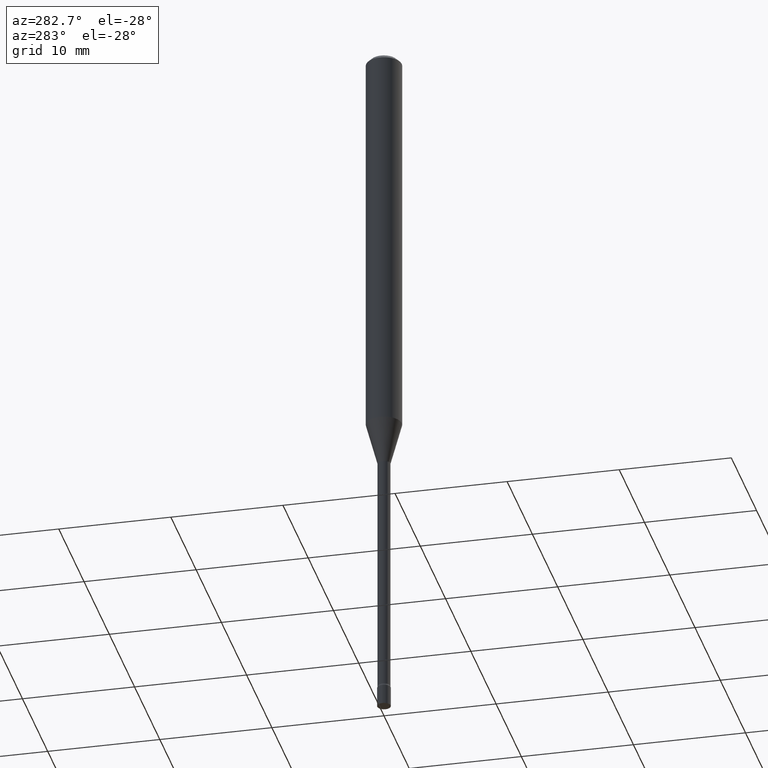
[diagram: clean part render]
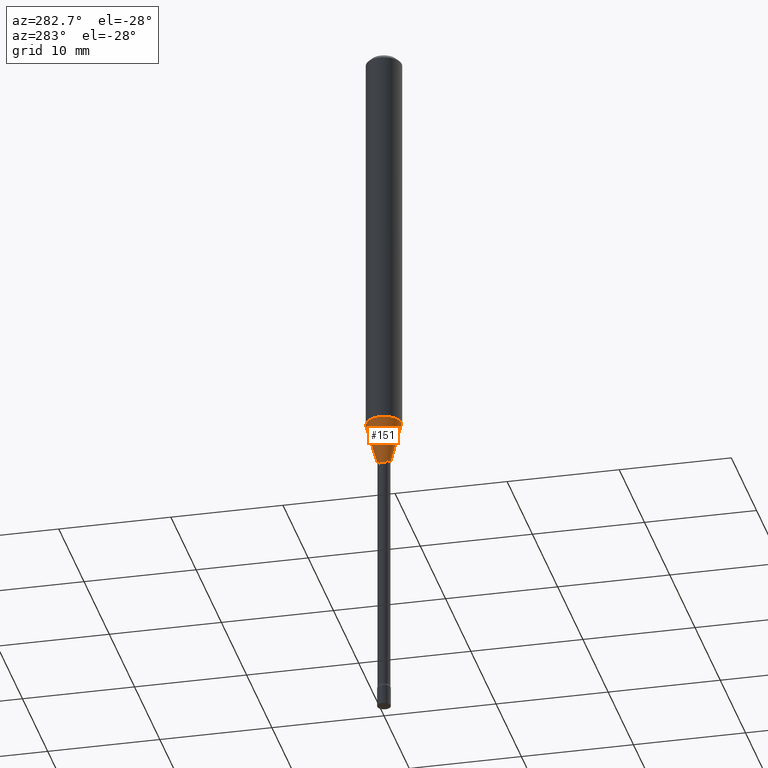
[diagram: same view with one face highlighted and labeled with its STEP entity id]
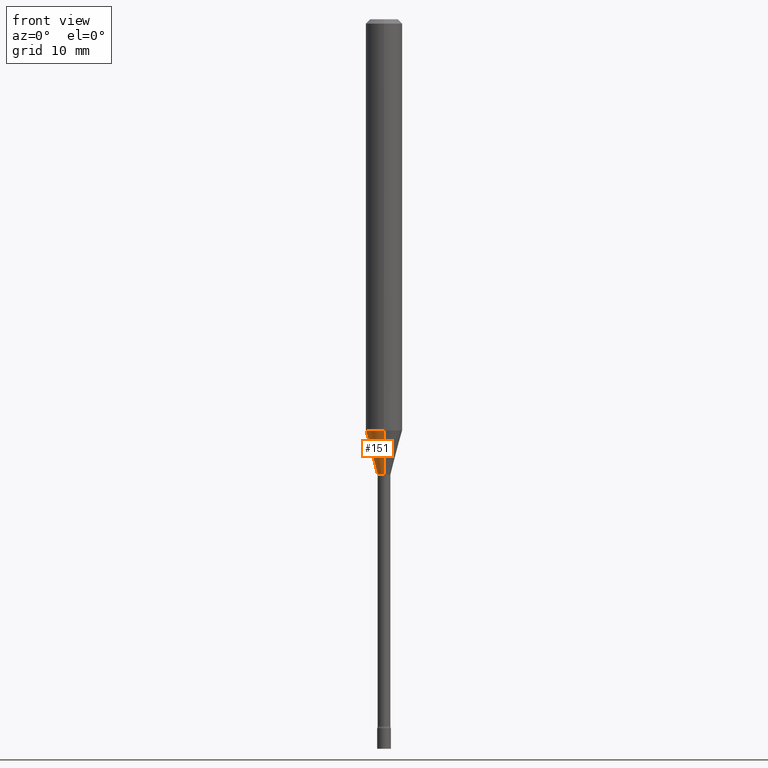
[diagram: same view with one face highlighted and labeled with its STEP entity id]
A machine part, auxiliary view. The second image highlights one B-rep face of the part: STEP entity #151.
A second angle (front view) of the same face is appended — the face is thin or edge-on in the first view.
In plain terms, the highlighted conical surface has half-angle 15 deg.
Its self-contained STEP definition (entity closure, byte-faithful):
#40 = CARTESIAN_POINT ( 'NONE',  ( 3.023754139721085035E-16, 0.02261111260565855027, -1.558092501787273321 ) ) ;
#42 = VERTEX_POINT ( 'NONE', #300 ) ;
#44 = CONICAL_SURFACE ( 'NONE', #51, 0.02261111260566398690, 0.2617993877991501295 ) ;
#51 = AXIS2_PLACEMENT_3D ( 'NONE', #94, #62, #336 ) ;
#60 = CARTESIAN_POINT ( 'NONE',  ( 1.606616180941198289E-16, 0.02261111260565855027, -1.558092501787273321 ) ) ;
#62 = DIRECTION ( 'NONE',  ( -2.445459864664737566E-29, 3.491494143609276784E-15, 1.000000000000000000 ) ) ;
#72 = AXIS2_PLACEMENT_3D ( 'NONE', #344, #179, #505 ) ;
#74 = AXIS2_PLACEMENT_3D ( 'NONE', #138, #225, #378 ) ;
#80 = EDGE_CURVE ( 'NONE', #502, #42, #281, .T. ) ;
#88 = VERTEX_POINT ( 'NONE', #146 ) ;
#94 = CARTESIAN_POINT ( 'NONE',  ( 3.810252678555848085E-29, -5.440070845191792507E-15, -1.558092501787273321 ) ) ;
#106 = FACE_OUTER_BOUND ( 'NONE', #139, .T. ) ;
#138 = CARTESIAN_POINT ( 'NONE',  ( 3.446203538179899442E-29, -4.920301349084003564E-15, -1.409225147374218112 ) ) ;
#139 = EDGE_LOOP ( 'NONE', ( #385, #181, #184, #343 ) ) ;
#146 = CARTESIAN_POINT ( 'NONE',  ( 4.440892098500968330E-16, 0.06249999999999506645, -1.409225147374218334 ) ) ;
#151 = ADVANCED_FACE ( 'NONE', ( #106 ), #44, .T. ) ;
#179 = DIRECTION ( 'NONE',  ( -2.445459864664737566E-29, 3.491494143609276784E-15, 1.000000000000000000 ) ) ;
#181 = ORIENTED_EDGE ( 'NONE', *, *, #80, .T. ) ;
#184 = ORIENTED_EDGE ( 'NONE', *, *, #447, .T. ) ;
#215 = VECTOR ( 'NONE', #219, 39.37007874015747433 ) ;
#219 = DIRECTION ( 'NONE',  ( 1.839019923739599526E-15, 0.2588190451025248473, 0.9659258262890673130 ) ) ;
#225 = DIRECTION ( 'NONE',  ( -2.445459864664737566E-29, 3.491494143609276784E-15, 1.000000000000000000 ) ) ;
#235 = CARTESIAN_POINT ( 'NONE',  ( -1.578925554262749888E-16, -0.02261111260566942699, -1.558092501787273321 ) ) ;
#251 = EDGE_CURVE ( 'NONE', #88, #316, #315, .T. ) ;
#265 = LINE ( 'NONE', #60, #215 ) ;
#281 = CIRCLE ( 'NONE', #72, 0.02261111260566398690 ) ;
#300 = CARTESIAN_POINT ( 'NONE',  ( -1.578925554262749888E-16, -0.02261111260566942699, -1.558092501787273321 ) ) ;
#315 = CIRCLE ( 'NONE', #74, 0.06250000000000000000 ) ;
#316 = VERTEX_POINT ( 'NONE', #476 ) ;
#336 = DIRECTION ( 'NONE',  ( -6.982962677686265922E-15, -1.000000000000000000, 0.000000000000000000 ) ) ;
#343 = ORIENTED_EDGE ( 'NONE', *, *, #251, .F. ) ;
#344 = CARTESIAN_POINT ( 'NONE',  ( 3.810252678555848085E-29, -5.440070845191792507E-15, -1.558092501787273321 ) ) ;
#360 = DIRECTION ( 'NONE',  ( -1.807323732225328562E-15, -0.2588190451025179639, 0.9659258262890689783 ) ) ;
#364 = LINE ( 'NONE', #235, #477 ) ;
#378 = DIRECTION ( 'NONE',  ( -6.982962677686265922E-15, -1.000000000000000000, 4.370956789862821150E-15 ) ) ;
#385 = ORIENTED_EDGE ( 'NONE', *, *, #425, .F. ) ;
#425 = EDGE_CURVE ( 'NONE', #502, #88, #265, .T. ) ;
#447 = EDGE_CURVE ( 'NONE', #42, #316, #364, .T. ) ;
#476 = CARTESIAN_POINT ( 'NONE',  ( -4.364351673553573540E-16, -0.06250000000000494049, -1.409225147374217890 ) ) ;
#477 = VECTOR ( 'NONE', #360, 39.37007874015749564 ) ;
#502 = VERTEX_POINT ( 'NONE', #40 ) ;
#505 = DIRECTION ( 'NONE',  ( -6.982962677686265922E-15, -1.000000000000000000, 0.000000000000000000 ) ) ;